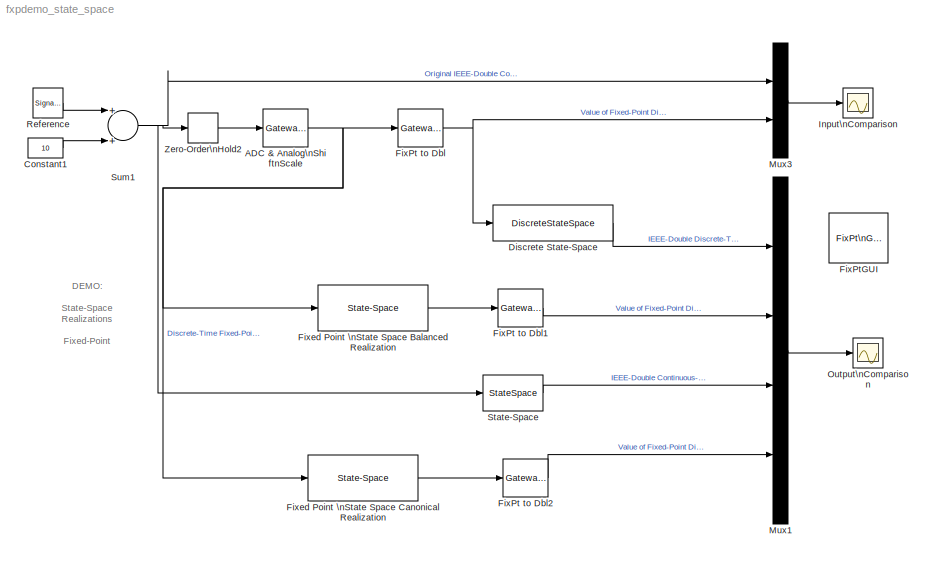
MODEL fxpdemo_state_space
KIND model
CONFIG AbsTol = 1e-6
CONFIG FixedStep = SampleTime/5
CONFIG InitFcn = ; 
CONFIG MaxStep = auto
CONFIG MinStep = auto
CONFIG PreLoadFcn = preload_state_space
CONFIG RelTol = 1e-3
CONFIG Solver = ode5
CONFIG SolverMode = SingleTasking
CONFIG StartFcn = ; 
CONFIG StartTime = 0.0
CONFIG StopFcn = ; 
CONFIG StopTime = 2
BLOCK [Reference] ADC & Analog\nShiftnScale  REF=fixpt_lib_4/Data Type/Gateway In  (lib defined in mdl_ef9dacb0d1df)
  DoSatur = on
  InRealWorld = Real World Value
  LockScale = on
  OutDataType = BaseType
  OutScaling = 2^-6
  OutputDataTypeScalingMode = Specify via dialog
  Ports = [1, 1]
  RndMeth = Nearest
  SourceBlock = fixpt_lib_4/Data Type/Gateway In
  SourceType = Fixed-Point Gateway In
BLOCK [Constant] Constant1
  Value = 10
BLOCK [DiscreteStateSpace] Discrete State-Space
  A = Ac_z
  B = Bc_z
  C = Cc_z
  D = Dc_z
  SampleTime = SampleTime
  X0 = xc0_z
BLOCK [Reference] FixPt to Dbl  REF=fixpt_lib_4/Data Type/Gateway Out  (lib defined in mdl_ef9dacb0d1df)
  DoSatur = off
  OutBuiltInType = double
  OutRealWorld = Real World Value
  Ports = [1, 1]
  RndMeth = Floor
  SourceBlock = fixpt_lib_4/Data Type/Gateway Out
  SourceType = Fixed-Point Gateway Out
BLOCK [Reference] FixPt to Dbl1  REF=fixpt_lib_4/Data Type/Gateway Out  (lib defined in mdl_ef9dacb0d1df)
  DoSatur = off
  OutBuiltInType = double
  OutRealWorld = Real World Value
  Ports = [1, 1]
  RndMeth = Floor
  SourceBlock = fixpt_lib_4/Data Type/Gateway Out
  SourceType = Fixed-Point Gateway Out
BLOCK [Reference] FixPt to Dbl2  REF=fixpt_lib_4/Data Type/Gateway Out  (lib defined in mdl_ef9dacb0d1df)
  DoSatur = off
  OutBuiltInType = double
  OutRealWorld = Real World Value
  Ports = [1, 1]
  RndMeth = Floor
  SourceBlock = fixpt_lib_4/Data Type/Gateway Out
  SourceType = Fixed-Point Gateway Out
BLOCK [Reference] FixPtGUI  REF=fixpt_lib_3p1/FixPt\nGUI
  Ports = []
  SourceBlock = fixpt_lib_3p1/FixPt\nGUI
  SourceType = Fixed-Point GUI
BLOCK [Reference] Fixed Point \nState Space Balanced Realization  REF=fixpt_lib_4/Filters/State-Space  (lib defined in mdl_ef9dacb0d1df)
  A = Ab_z
  B = Bb_z
  C = Cb_z
  D = Db_z
  DoSatur = off
  InternalDataType = LongType
  LockScale = off
  OutputEqScaling = 2^(-15)
  Ports = [1, 1]
  RndMeth = Floor
  SourceBlock = fixpt_lib_4/Filters/State-Space
  SourceType = Fixed-Point State-Space
  StateEqScaling = 2^(-14)
  X0 = xb0_z
BLOCK [Reference] Fixed Point \nState Space Canonical Realization  REF=fixpt_lib_4/Filters/State-Space  (lib defined in mdl_ef9dacb0d1df)
  A = Ac_z
  B = Bc_z
  C = Cc_z
  D = Dc_z
  DoSatur = off
  InternalDataType = LongType
  LockScale = off
  OutputEqScaling = 2^(-15)
  Ports = [1, 1]
  RndMeth = Floor
  SourceBlock = fixpt_lib_4/Filters/State-Space
  SourceType = Fixed-Point State-Space
  StateEqScaling = 2^(-12)
  X0 = xc0_z
BLOCK [Scope] Input\nComparison
  DataFormat = StructureWithTime
  NumInputPorts = 1
  Ports = [1]
  SaveName = InputComparison
  SaveToWorkspace = on
  TickLabels = on
  YMax = 30
  YMin = -10
BLOCK [Mux] Mux1
  DisplayOption = bar
  Ports = [4, 1]
BLOCK [Mux] Mux3
  DisplayOption = bar
  Inputs = 2
  Ports = [2, 1]
BLOCK [Scope] Output\nComparison
  DataFormat = StructureWithTime
  NumInputPorts = 1
  Ports = [1]
  SaveName = OutputComparison
  SaveToWorkspace = on
  TickLabels = on
  TimeRange = 2
  YMax = 140
  YMin = -60
BLOCK [SignalGenerator] Reference
  Amplitude = -10
  Frequency = 0.5
  WaveForm = square
BLOCK [StateSpace] State-Space
  A = Ac_s
  B = Bc_s
  C = Cc_s
  D = Dc_s
  X0 = xc0_s
BLOCK [Sum] Sum1
  Inputs = 2
  Ports = [2, 1]
BLOCK [ZeroOrderHold] Zero-Order\nHold2
  SampleTime = SampleTime
ANNOTATION (root): DEMO:\n\nState-Space\nRealizations\n\nFixed-Point \nverses\nFloating-Point
NET ADC & Analog\nShiftnScale:1 -> FixPt to Dbl:1, Fixed Point \nState Space Balanced Realization:1, Fixed Point \nState Space Canonical Realization:1
LINE Constant1:1 -> Sum1:2
LINE Discrete State-Space:1 -> Mux1:1
LINE FixPt to Dbl1:1 -> Mux1:2
LINE FixPt to Dbl2:1 -> Mux1:4
NET FixPt to Dbl:1 -> Discrete State-Space:1, Mux3:2
LINE Fixed Point \nState Space Balanced Realization:1 -> FixPt to Dbl1:1
LINE Fixed Point \nState Space Canonical Realization:1 -> FixPt to Dbl2:1
LINE Mux1:1 -> Output\nComparison:1
LINE Mux3:1 -> Input\nComparison:1
LINE Reference:1 -> Sum1:1
LINE State-Space:1 -> Mux1:3
NET Sum1:1 -> Mux3:1, State-Space:1, Zero-Order\nHold2:1
LINE Zero-Order\nHold2:1 -> ADC & Analog\nShiftnScale:1
note: NET lines group one-source signal fan-out (src -> all destinations, sorted); 1:1 wires keep LINE
